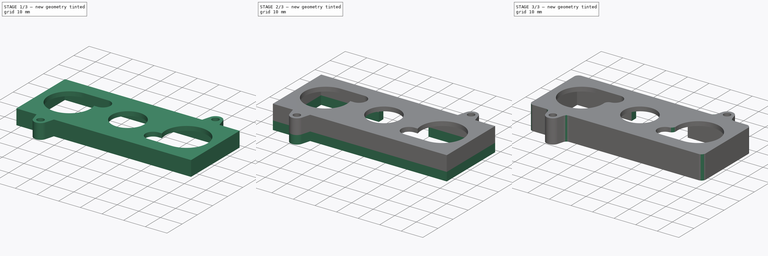
[diagram: build sequence overview — one tinted view per stage of 3, left to right]
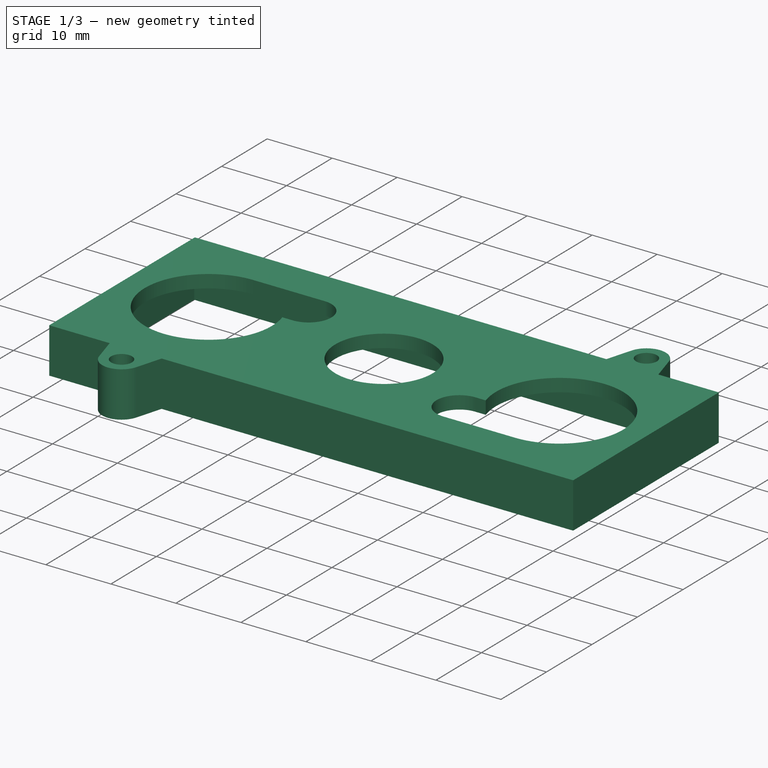
[diagram: stage 1 of 3 — iso view after this stage's code; geometry added in this stage tinted green]
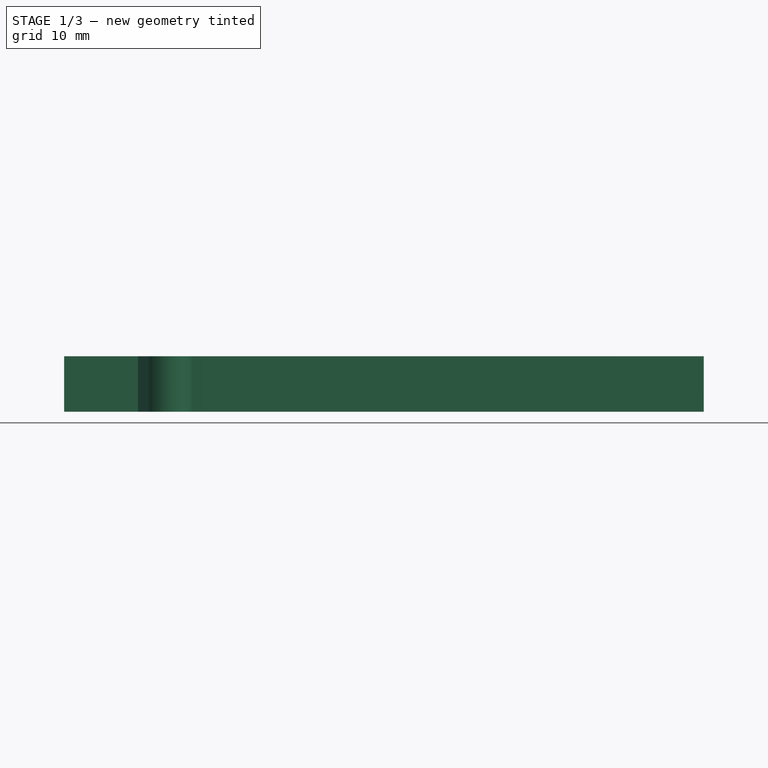
[diagram: stage 1 of 3 — front view after this stage's code; geometry added in this stage tinted green]
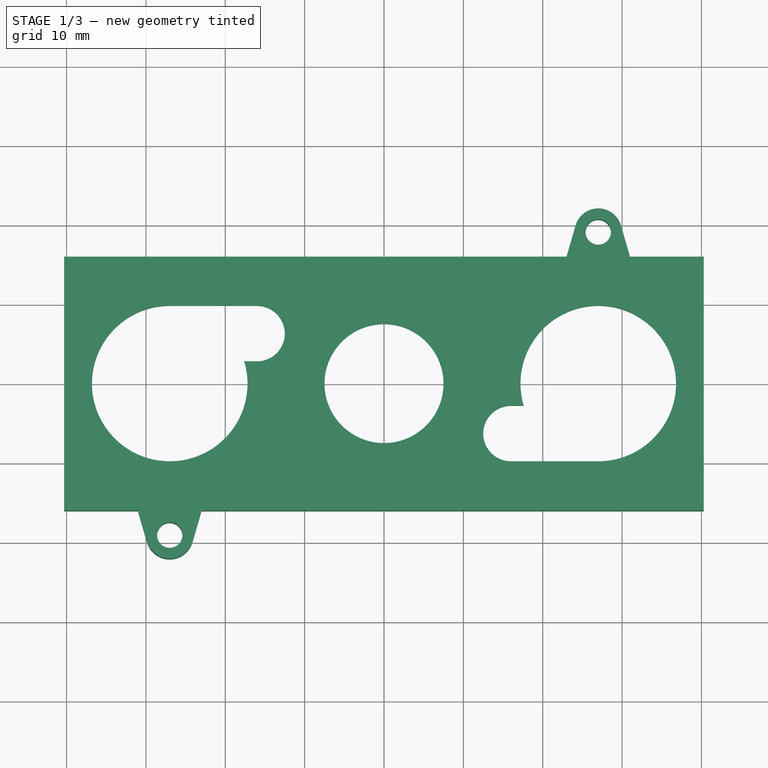
[diagram: stage 1 of 3 — top view after this stage's code; geometry added in this stage tinted green]
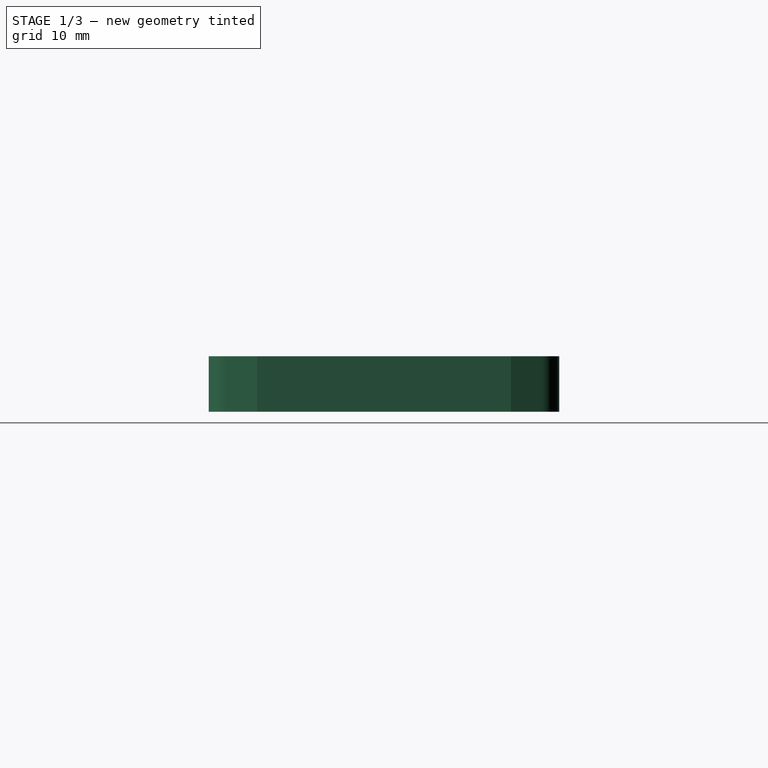
[diagram: stage 1 of 3 — right view after this stage's code; geometry added in this stage tinted green]
FCSTD DOCUMENT  (FreeCAD 0.19R24366 (Git))
Label: case-camera-frente
License: All rights reserved
LicenseURL: http://en.wikipedia.org/wiki/All_rights_reserved
objects: Sketcher::SketchObject×5, PartDesign::Pad×4, PartDesign::Pocket×2, PartDesign::Fillet×2, PartDesign::Body×1
note: 22 computed .brp shape members not serialized (recipe doc carries the construction recipe); baked Part::Feature solids carry a one-line shape summary decoded from their .brp

FEATURE [Sketcher::SketchObject] Sketch
  FullyConstrained = true
  MapMode = 5
  Support = -> [XY_Plane]
  sketch-geometry (28):
    g0: LineSegment StartX=-36.8 StartY=9.8 StartZ=0 EndX=36.8 EndY=9.8 EndZ=0
    g1: LineSegment StartX=36.8 StartY=9.8 StartZ=0 EndX=36.8 EndY=-9.8 EndZ=0
    g2: LineSegment StartX=36.8 StartY=-9.8 StartZ=0 EndX=-36.8 EndY=-9.8 EndZ=0
    g3: LineSegment StartX=-36.8 StartY=-9.8 StartZ=0 EndX=-36.8 EndY=9.8 EndZ=0
    g4: Circle CenterX=-27 CenterY=0 CenterZ=0 NormalX=0 NormalY=0 NormalZ=1 AngleXU=0 Radius=9.8
    g5: Circle CenterX=27 CenterY=0 CenterZ=0 NormalX=0 NormalY=0 NormalZ=1 AngleXU=0 Radius=9.8
    g6: LineSegment StartX=-27 StartY=0 StartZ=0 EndX=0 EndY=0 EndZ=0
    g7: LineSegment StartX=0 StartY=0 StartZ=0 EndX=27 EndY=0 EndZ=0
    g8: Circle CenterX=0 CenterY=0 CenterZ=0 NormalX=0 NormalY=0 NormalZ=1 AngleXU=0 Radius=7.5
    g9: Circle CenterX=-16 CenterY=6.3 CenterZ=0 NormalX=0 NormalY=0 NormalZ=1 AngleXU=0 Radius=3.5
    g10: Circle CenterX=16 CenterY=-6.3 CenterZ=0 NormalX=0 NormalY=0 NormalZ=1 AngleXU=0 Radius=3.5
    g11: LineSegment StartX=-16 StartY=6.3 StartZ=0 EndX=-27 EndY=6.3 EndZ=0
    g12: LineSegment StartX=16 StartY=-6.3 StartZ=0 EndX=27 EndY=-6.3 EndZ=0
    g13: ArcOfCircle CenterX=16 CenterY=-6.3 CenterZ=0 NormalX=0 NormalY=0 NormalZ=1 AngleXU=0 Radius=3.5 StartAngle=1.5708 EndAngle=4.71239
    g14: ArcOfCircle CenterX=27 CenterY=0 CenterZ=0 NormalX=0 NormalY=0 NormalZ=1 AngleXU=0 Radius=9.8 StartAngle=4.71239 EndAngle=9.71453
    g15: LineSegment StartX=16 StartY=-9.8 StartZ=0 EndX=27 EndY=-9.8 EndZ=0
    g16: LineSegment StartX=16 StartY=-2.8 StartZ=0 EndX=17.6085 EndY=-2.8 EndZ=0
    g17: LineSegment StartX=-17.6085 StartY=2.8 StartZ=0 EndX=-16 EndY=2.8 EndZ=0
    g18: LineSegment StartX=-27 StartY=9.8 StartZ=0 EndX=-16 EndY=9.8 EndZ=0
    g19: ArcOfCircle CenterX=-27 CenterY=0 CenterZ=0 NormalX=0 NormalY=0 NormalZ=1 AngleXU=0 Radius=9.8 StartAngle=1.5708 EndAngle=6.57294
    g20: ArcOfCircle CenterX=-16 CenterY=6.3 CenterZ=0 NormalX=0 NormalY=0 NormalZ=1 AngleXU=0 Radius=3.5 StartAngle=4.71239 EndAngle=7.85398
    g21: Circle CenterX=0 CenterY=0 CenterZ=0 NormalX=0 NormalY=0 NormalZ=1 AngleXU=0 Radius=7.5
    g22: LineSegment StartX=-38.3 StartY=13 StartZ=0 EndX=38.3 EndY=13 EndZ=0
    g23: LineSegment StartX=38.3 StartY=13 StartZ=0 EndX=38.3 EndY=-13 EndZ=0
    g24: LineSegment StartX=38.3 StartY=-13 StartZ=0 EndX=-38.3 EndY=-13 EndZ=0
    g25: LineSegment StartX=-38.3 StartY=-13 StartZ=0 EndX=-38.3 EndY=13 EndZ=0
    g26: LineSegment StartX=38.3 StartY=13 StartZ=0 EndX=-38.3 EndY=-13 EndZ=0
    g27: LineSegment StartX=-38.3 StartY=13 StartZ=0 EndX=38.3 EndY=-13 EndZ=0
  constraints (80):
    c: Coincident(g0,g1)
    c: Coincident(g1,g2)
    c: Coincident(g2,g3)
    c: Coincident(g3,g0)
    c: Horizontal(g0)
    c: Horizontal(g2)
    c: Vertical(g1)
    c: Vertical(g3)
    c: PointOnObject(g4,g-1)
    c: PointOnObject(g5,g-1)
    c: Tangent(g5,g0)
    c: Tangent(g5,g2)
    c: Tangent(g5,g1)
    c: Tangent(g4,g2)
    c: Tangent(g4,g3)
    c: Coincident(g6,g4)
    c: Coincident(g7,g6)
    c: Coincident(g7,g5)
    c: Coincident(g6,g-1)
    c: Equal(g6,g7)
    c: Coincident(g8,g-1)
    c: Tangent(g10,g2)
    c: Tangent(g9,g0)
    c: Equal(g9,g10)
    c: Coincident(g11,g9)
    c: Horizontal(g11)
    c: Coincident(g12,g10)
    c: Horizontal(g12)
    c: Equal(g12,g11)
    c: Vertical(g4,g11)
    c: Vertical(g12,g5)
    c: DistanceX(g11,g11) = 11
    c: DistanceX(g4,g5) = 54
    c: Radius(g5) = 9.8
    c: Radius(g10) = 3.5
    c: Radius(g8) = 7.5
    c: Equal(g14,g5)
    c: Horizontal(g15)
    c: PointOnObject(g16,g5)
    c: Horizontal(g16)
    c: PointOnObject(g14,g16)
    c: Tangent(g10,g16)
    c: Equal(g13,g10)
    c: Coincident(g13,g10)
    c: Coincident(g13,g16)
    c: Tangent(g15,g10)
    c: Coincident(g15,g13)
    c: Tangent(g14,g5) = -1.5708
    c: Coincident(g14,g15)
    c: Horizontal(g17)
    c: Tangent(g18,g9)
    c: Tangent(g18,g4)
    c: Tangent(g17,g9)
    c: Equal(g19,g4)
    c: Coincident(g19,g4)
    c: Coincident(g19,g18)
    c: Coincident(g19,g17)
    c: Coincident(g20,g9)
    c: Equal(g20,g9)
    c: Coincident(g20,g17)
    c: Coincident(g20,g18)
    c: Coincident(g21,g-1)
    c: Equal(g21,g8)
    c: DistanceY(g12,g14) = 6.3
    c: Coincident(g22,g23)
    c: Coincident(g23,g24)
    c: Coincident(g24,g25)
    c: Coincident(g25,g22)
    c: Horizontal(g22)
    c: Horizontal(g24)
    c: Vertical(g23)
    c: Vertical(g25)
    c: Coincident(g26,g22)
    c: Coincident(g26,g24)
    c: Coincident(g27,g22)
    c: Coincident(g27,g23)
    c: DistanceY(g25,g25) = 26
    c: PointOnObject(g21,g26)
    c: PointOnObject(g21,g27)
    c: DistanceX(g1,g23) = 1.5
FEATURE [PartDesign::Pad] Pad
  Direction = (1,1,1)
  Length = 2
  Length2 = 100
  Profile = -> Sketch
  Type = 0
FEATURE [Sketcher::SketchObject] Sketch001
  ExternalGeometry = -> [Pad]
  FullyConstrained = true
  MapMode = 5
  Placement = pos=(0,0,2) rot=(0,0,1;0rad)
  Support = -> [Pad]
  sketch-geometry (10):
    g0: LineSegment StartX=-38.3 StartY=13 StartZ=0 EndX=38.3 EndY=13 EndZ=0
    g1: LineSegment StartX=38.3 StartY=13 StartZ=0 EndX=38.3 EndY=-13 EndZ=0
    g2: LineSegment StartX=38.3 StartY=-13 StartZ=0 EndX=-38.3 EndY=-13 EndZ=0
    g3: LineSegment StartX=-38.3 StartY=-13 StartZ=0 EndX=-38.3 EndY=13 EndZ=0
    g4: LineSegment StartX=-40.3 StartY=16 StartZ=0 EndX=40.3 EndY=16 EndZ=0
    g5: LineSegment StartX=40.3 StartY=16 StartZ=0 EndX=40.3 EndY=-16 EndZ=0
    g6: LineSegment StartX=40.3 StartY=-16 StartZ=0 EndX=-40.3 EndY=-16 EndZ=0
    g7: LineSegment StartX=-40.3 StartY=-16 StartZ=0 EndX=-40.3 EndY=16 EndZ=0
    g8: LineSegment StartX=-40.3 StartY=16 StartZ=0 EndX=40.3 EndY=-16 EndZ=0
    g9: LineSegment StartX=40.3 StartY=16 StartZ=0 EndX=-40.3 EndY=-16 EndZ=0
  constraints (26):
    c: Coincident(g0,g1)
    c: Coincident(g1,g2)
    c: Coincident(g2,g3)
    c: Coincident(g3,g0)
    c: Horizontal(g0)
    c: Horizontal(g2)
    c: Vertical(g1)
    c: Vertical(g3)
    c: Coincident(g0,g-4)
    c: Coincident(g1,g-5)
    c: Coincident(g4,g5)
    c: Coincident(g5,g6)
    c: Coincident(g6,g7)
    c: Coincident(g7,g4)
    c: Horizontal(g4)
    c: Horizontal(g6)
    c: Vertical(g5)
    c: Vertical(g7)
    c: Coincident(g8,g4)
    c: Coincident(g8,g5)
    c: Coincident(g9,g4)
    c: Coincident(g9,g6)
    c: PointOnObject(g-1,g8)
    c: PointOnObject(g-1,g9)
    c: DistanceY(g0,g4) = 3
    c: DistanceX(g4,g0) = 2
FEATURE [PartDesign::Pad] Pad001
  BaseFeature = -> Pad
  Direction = (1,1,1)
  Length = 7
  Length2 = 100
  Profile = -> Sketch001
  Reversed = true
  Type = 0
FEATURE [Sketcher::SketchObject] Sketch002
  ExternalGeometry = -> [Pad001]
  FullyConstrained = false
  MapMode = 5
  Placement = pos=(0,0,2) rot=(0,0,1;0rad)
  Support = -> [Pad001]
  sketch-geometry (14):
    g0: ArcOfCircle CenterX=27 CenterY=19.1 CenterZ=0 NormalX=0 NormalY=0 NormalZ=1 AngleXU=0 Radius=2.97707 StartAngle=0.282555 EndAngle=2.85904
    g1: LineSegment StartX=24.141 StartY=19.93 StartZ=0 EndX=23 EndY=16 EndZ=0
    g2: LineSegment StartX=29.859 StartY=19.93 StartZ=0 EndX=31 EndY=16 EndZ=0
    g3: ArcOfCircle CenterX=-27 CenterY=-19.1 CenterZ=0 NormalX=0 NormalY=0 NormalZ=1 AngleXU=0 Radius=2.97707 StartAngle=3.42415 EndAngle=6.00063
    g4: LineSegment StartX=-31 StartY=-16 StartZ=0 EndX=-29.859 EndY=-19.93 EndZ=0
    g5: LineSegment StartX=-23 StartY=-16 StartZ=0 EndX=-24.141 EndY=-19.93 EndZ=0
    g6: Circle CenterX=27 CenterY=19.1 CenterZ=0 NormalX=0 NormalY=0 NormalZ=1 AngleXU=0 Radius=1.6
    g7: Circle CenterX=-27 CenterY=-19.1 CenterZ=0 NormalX=0 NormalY=0 NormalZ=1 AngleXU=0 Radius=1.6
    g8: LineSegment StartX=-31 StartY=-16 StartZ=0 EndX=-23 EndY=-16 EndZ=0
    g9: LineSegment StartX=23 StartY=16 StartZ=0 EndX=31 EndY=16 EndZ=0
    g10: GeomPoint X=-16 Y=-16 Z=0
    g11: GeomPoint X=-27 Y=-17.5 Z=0
    g12: GeomPoint X=-23.9 Y=-19.1 Z=0
    g13: GeomPoint X=-25.4 Y=-19.1 Z=0
  constraints (33):
    c: Tangent(g0,g2) = 1.5708
    c: Tangent(g0,g1) = -1.5708
    c: Tangent(g4,g3) = -1.5708
    c: Tangent(g5,g3) = 1.5708
    c: Horizontal(g5,g4)
    c: Horizontal(g4,g-4)
    c: Equal(g4,g5)
    c: Horizontal(g2,g1)
    c: Horizontal(g1,g-3)
    c: Equal(g1,g2)
    c: Equal(g3,g0)
    c: Equal(g2,g4)
    c: Coincident(g6,g0)
    c: Coincident(g7,g3)
    c: Coincident(g9,g1)
    c: Coincident(g9,g2)
    c: Coincident(g8,g4)
    c: Coincident(g8,g5)
    c: Radius(g7) = 1.6
    c: Horizontal(g13,g12)
    c: Horizontal(g12,g3)
    c: PointOnObject(g13,g7)
    c: PointOnObject(g12,g5)
    c: DistanceX(g13,g12) = 1.5
    c: PointOnObject(g11,g7)
    c: PointOnObject(g10,g8)
    c: DistanceY(g11,g10) = 1.5
    c: DistanceX(g8,g8) = 8
    c: Equal(g6,g7)
    c: Vertical(g0,g-8)
    c: Equal(g9,g8)
    c: Vertical(g3,g-7)
    c: Vertical(g11,g3)
FEATURE [PartDesign::Pad] Pad002
  BaseFeature = -> Pad001
  Direction = (1,1,1)
  Length = 10
  Length2 = 100
  Profile = -> Sketch002
  Reversed = true
  Type = 3
  UpToFace = -> Pad001 [Face17]
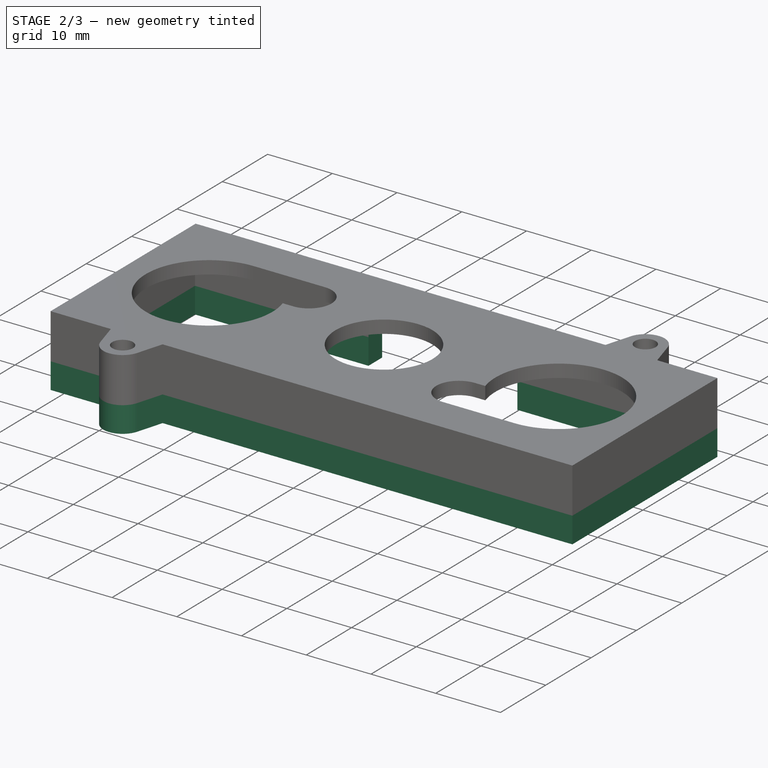
[diagram: stage 2 of 3 — iso view after this stage's code; geometry added in this stage tinted green]
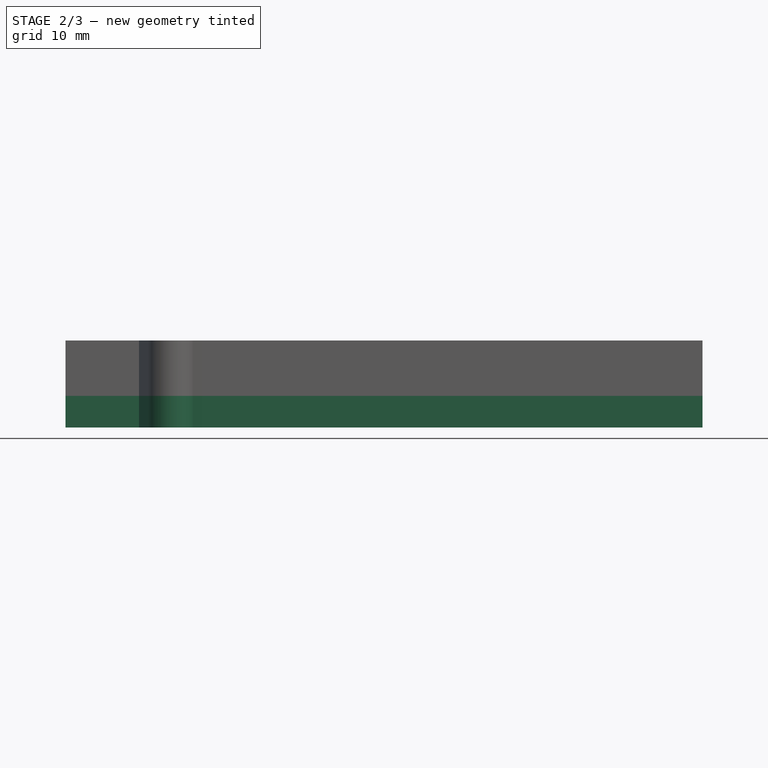
[diagram: stage 2 of 3 — front view after this stage's code; geometry added in this stage tinted green]
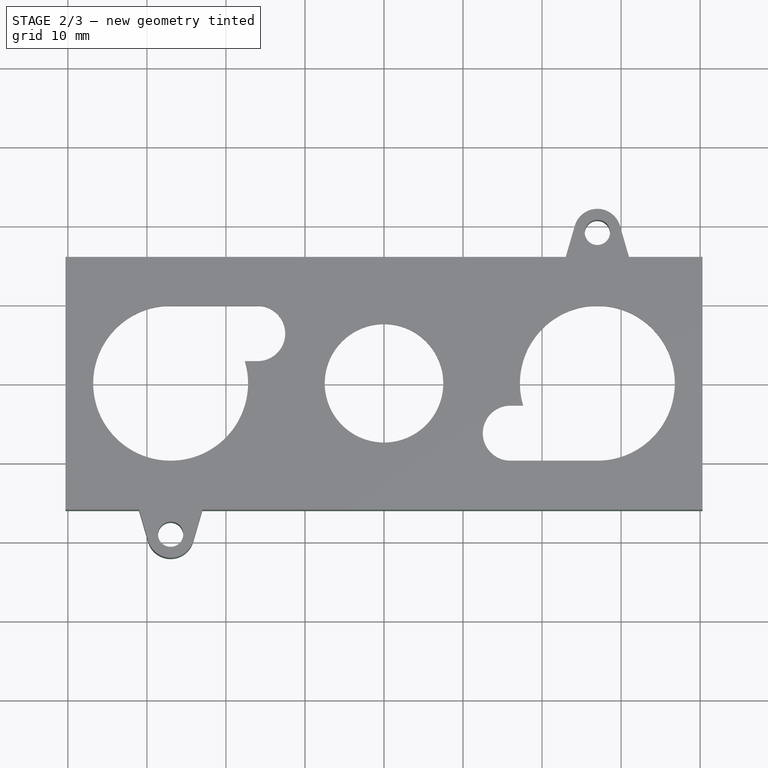
[diagram: stage 2 of 3 — top view after this stage's code; geometry added in this stage tinted green]
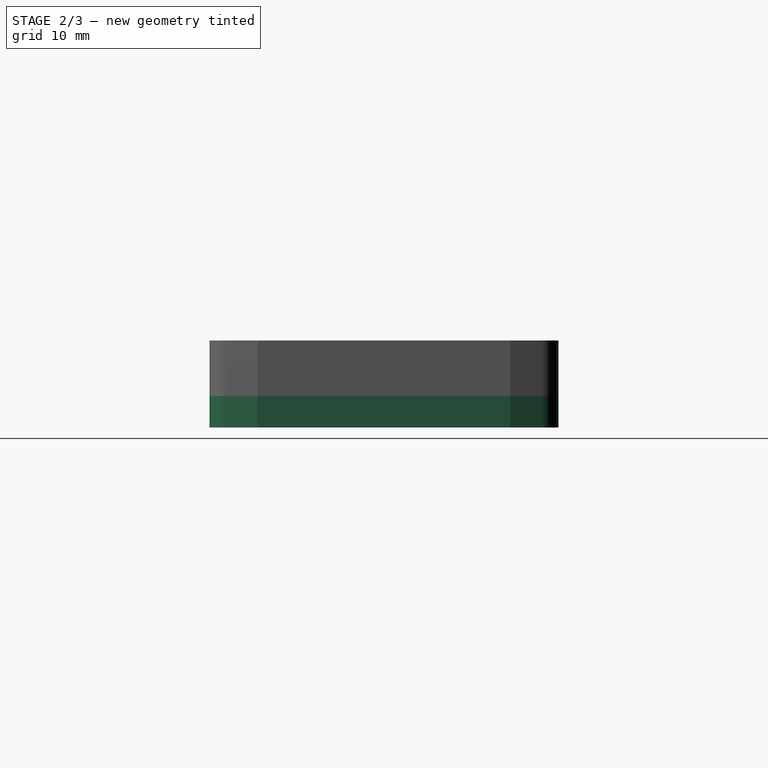
[diagram: stage 2 of 3 — right view after this stage's code; geometry added in this stage tinted green]
FEATURE [Sketcher::SketchObject] Sketch003
  ExternalGeometry = -> [Pad002]
  FullyConstrained = true
  MapMode = 5
  Placement = pos=(0,16,0) rot=(0,0.707107,0.707107;3.14159rad)
  Support = -> [Pad002]
  sketch-geometry (6):
    g0: LineSegment StartX=-11.5 StartY=0 StartZ=0 EndX=11.5 EndY=0 EndZ=0
    g1: LineSegment StartX=11.5 StartY=0 StartZ=0 EndX=11.5 EndY=-5 EndZ=0
    g2: LineSegment StartX=11.5 StartY=-5 StartZ=0 EndX=-11.5 EndY=-5 EndZ=0
    g3: LineSegment StartX=-11.5 StartY=-5 StartZ=0 EndX=-11.5 EndY=0 EndZ=0
    g4: LineSegment StartX=-11.5 StartY=0 StartZ=0 EndX=0 EndY=0 EndZ=0
    g5: LineSegment StartX=11.5 StartY=0 StartZ=0 EndX=0 EndY=0 EndZ=0
  constraints (16):
    c: Coincident(g0,g1)
    c: Coincident(g1,g2)
    c: Coincident(g2,g3)
    c: Coincident(g3,g0)
    c: Horizontal(g0)
    c: Horizontal(g2)
    c: Vertical(g1)
    c: Vertical(g3)
    c: Coincident(g4,g5)
    c: Coincident(g4,g-1)
    c: Equal(g5,g4)
    c: Coincident(g4,g0)
    c: Coincident(g5,g0)
    c: PointOnObject(g-1,g0)
    c: PointOnObject(g2,g-3)
    c: DistanceX(g2,g2) = 23
FEATURE [PartDesign::Pocket] Pocket
  BaseFeature = -> Pad002
  Length = 0
  Length2 = 100
  Profile = -> Sketch003
  Type = 3
  UpToFace = -> Pad002 [Face7]
FEATURE [PartDesign::Pad] Pad003
  BaseFeature = -> Pocket
  Direction = (1,1,1)
  Length = 4
  Length2 = 100
  Profile = -> Pocket [Face31,Face30,Face20]
  Reversed = true
  Type = 0
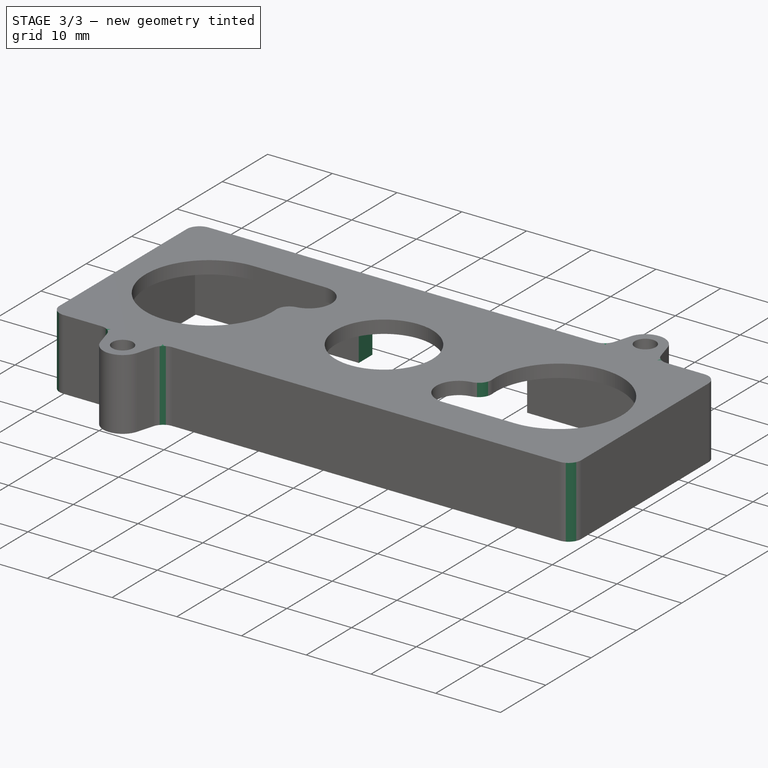
[diagram: stage 3 of 3 — iso view after this stage's code; geometry added in this stage tinted green]
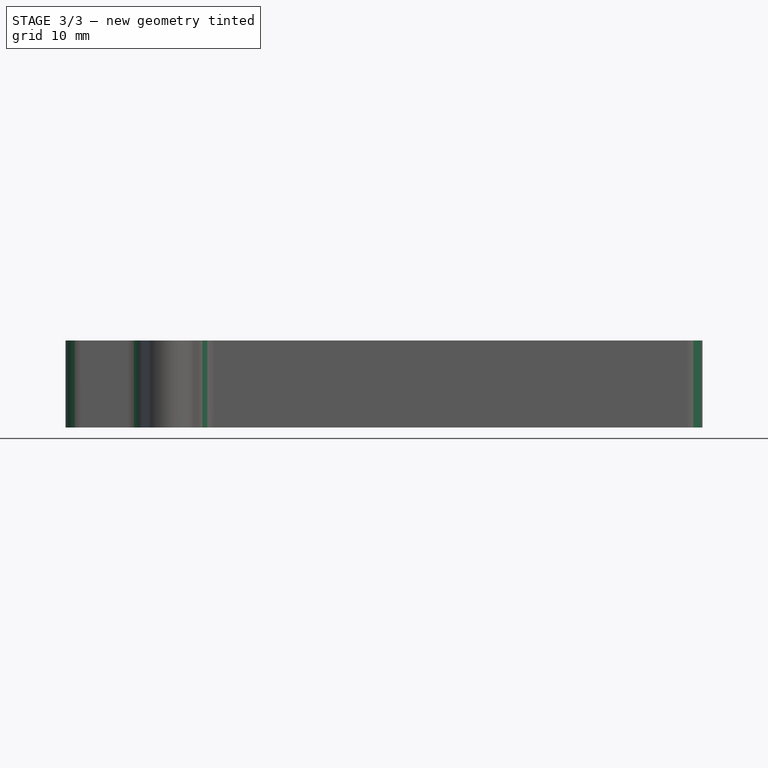
[diagram: stage 3 of 3 — front view after this stage's code; geometry added in this stage tinted green]
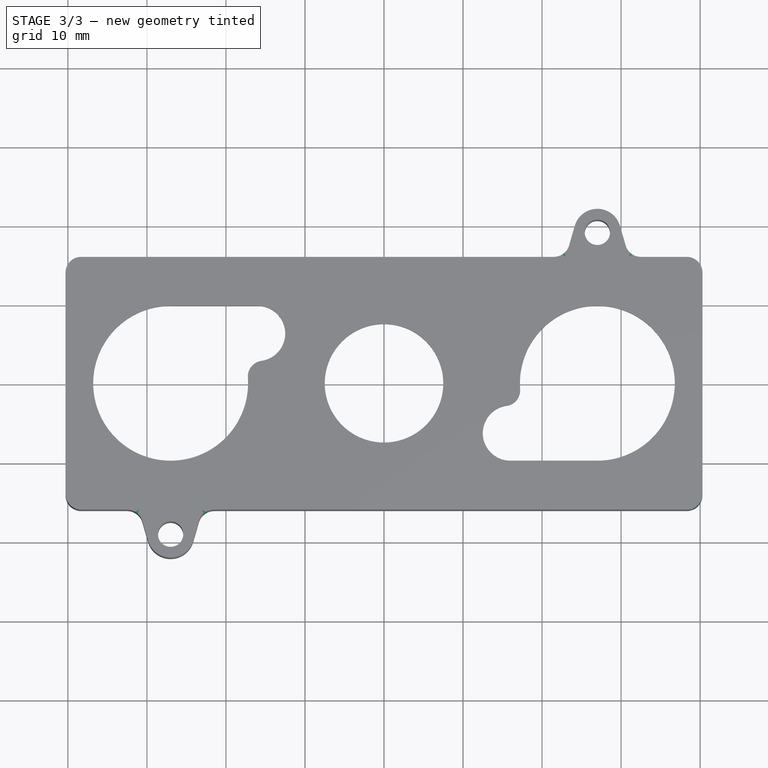
[diagram: stage 3 of 3 — top view after this stage's code; geometry added in this stage tinted green]
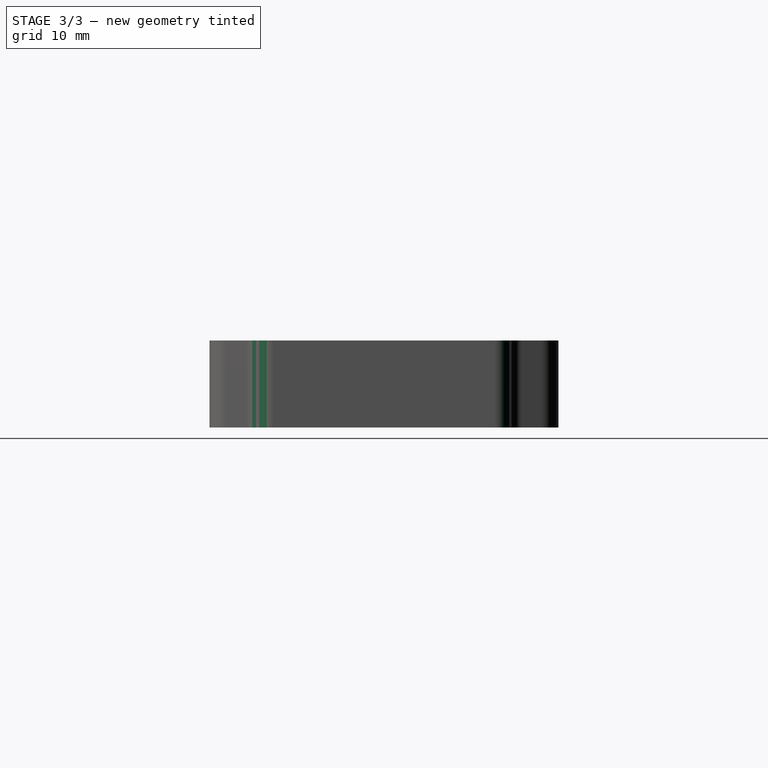
[diagram: stage 3 of 3 — right view after this stage's code; geometry added in this stage tinted green]
FEATURE [PartDesign::Fillet] Fillet
  Base = -> Pad003 [Edge2,Edge49,Edge94,Edge71,Edge83,Edge86]
  BaseFeature = -> Pad003
  Radius = 2
  SupportTransform = false
FEATURE [Sketcher::SketchObject] Sketch004
  ExternalGeometry = -> [Fillet]
  FullyConstrained = true
  MapMode = 5
  Placement = pos=(0,0,-9) rot=(1,0,0;3.14159rad)
  Support = -> [Fillet]
  sketch-geometry (8):
    g0: LineSegment StartX=-11.5 StartY=-13 StartZ=0 EndX=-13 EndY=-13 EndZ=0
    g1: LineSegment StartX=-13 StartY=-13 StartZ=0 EndX=-13 EndY=-16 EndZ=0
    g2: LineSegment StartX=-13 StartY=-16 StartZ=0 EndX=-11.5 EndY=-16 EndZ=0
    g3: LineSegment StartX=-11.5 StartY=-16 StartZ=0 EndX=-11.5 EndY=-13 EndZ=0
    g4: LineSegment StartX=11.5 StartY=-13 StartZ=0 EndX=13 EndY=-13 EndZ=0
    g5: LineSegment StartX=13 StartY=-13 StartZ=0 EndX=13 EndY=-16 EndZ=0
    g6: LineSegment StartX=13 StartY=-16 StartZ=0 EndX=11.5 EndY=-16 EndZ=0
    g7: LineSegment StartX=11.5 StartY=-16 StartZ=0 EndX=11.5 EndY=-13 EndZ=0
  constraints (20):
    c: Coincident(g0,g1)
    c: Coincident(g1,g2)
    c: Coincident(g2,g3)
    c: Coincident(g3,g0)
    c: Horizontal(g0)
    c: Horizontal(g2)
    c: Vertical(g1)
    c: Coincident(g0,g-3)
    c: Coincident(g4,g5)
    c: Coincident(g5,g6)
    c: Coincident(g6,g7)
    c: Coincident(g7,g4)
    c: Horizontal(g4)
    c: Horizontal(g6)
    c: Vertical(g5)
    c: Coincident(g4,g-4)
    c: Coincident(g6,g-4)
    c: Coincident(g2,g-3)
    c: Equal(g2,g6)
    c: DistanceX(g2,g2) = 1.5
FEATURE [PartDesign::Pocket] Pocket001
  BaseFeature = -> Fillet
  Length = 5
  Length2 = 100
  Profile = -> Sketch004
  Type = 2
FEATURE [PartDesign::Fillet] Fillet001
  Base = -> Pocket001 [Edge106,Edge116,Edge76,Edge100]
  BaseFeature = -> Pocket001
  Radius = 2
  SupportTransform = false
FEATURE [PartDesign::Body] Body  label="frente"
  Group = -> [Sketch,Pad,Sketch001,Pad001,Sketch002,Pad002,Sketch003,Pocket,Pad003,Fillet,Sketch004,Pocket001,Fillet001]
  Origin = -> Origin
  Placement = pos=(0,3,0) rot=(0,0,1;0rad)
  Tip = -> Fillet001
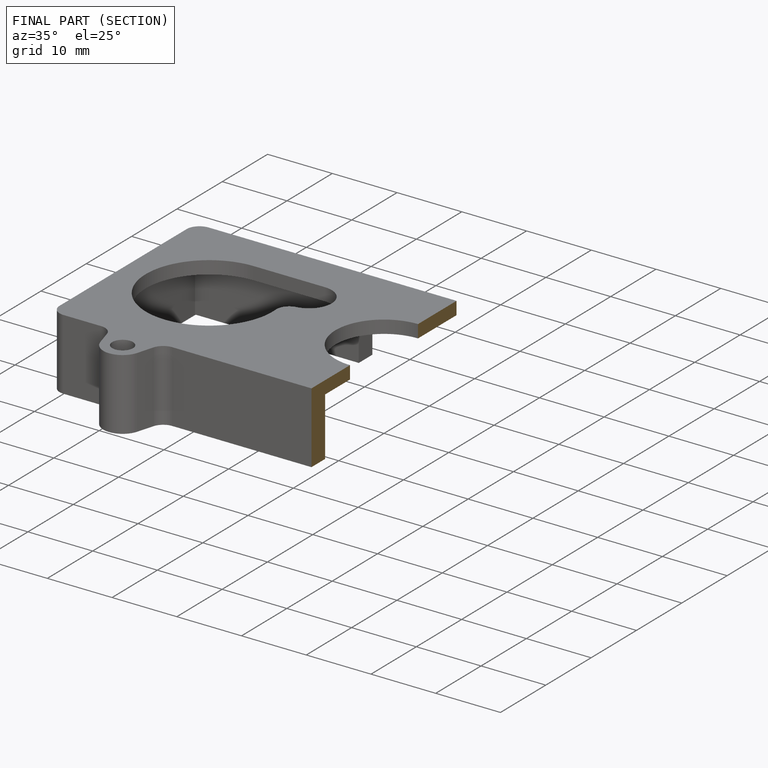
[diagram: finished part — half-section view (interior)]
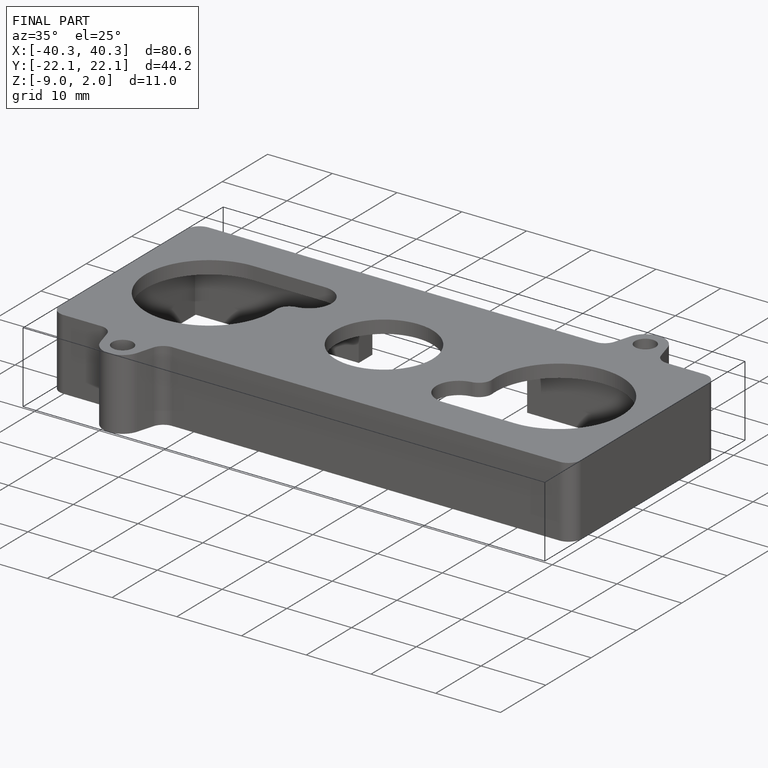
[diagram: finished part — iso view with bounding-box wireframe]
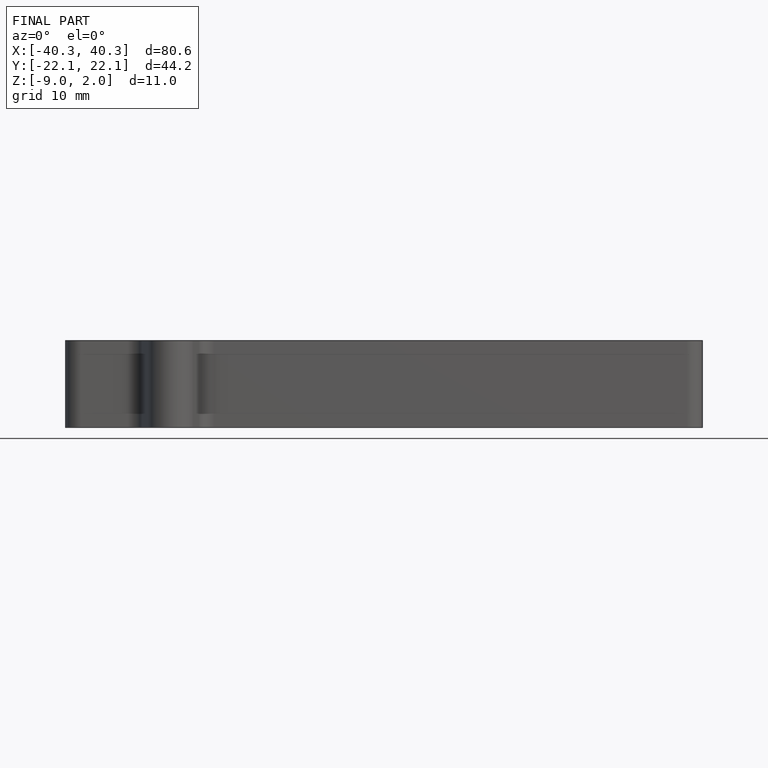
[diagram: finished part — front view with bounding-box wireframe]
